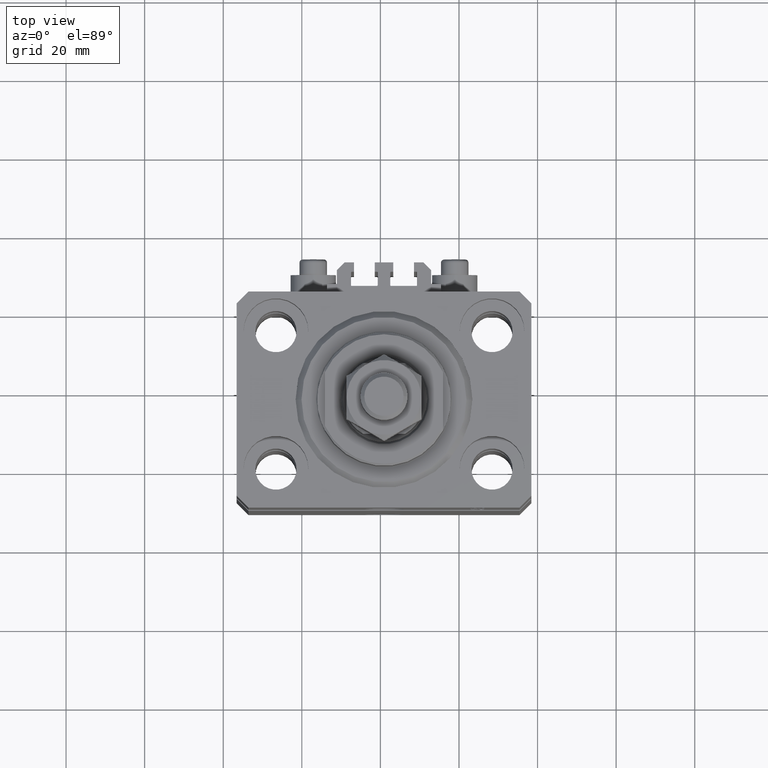
[diagram: clean part render]
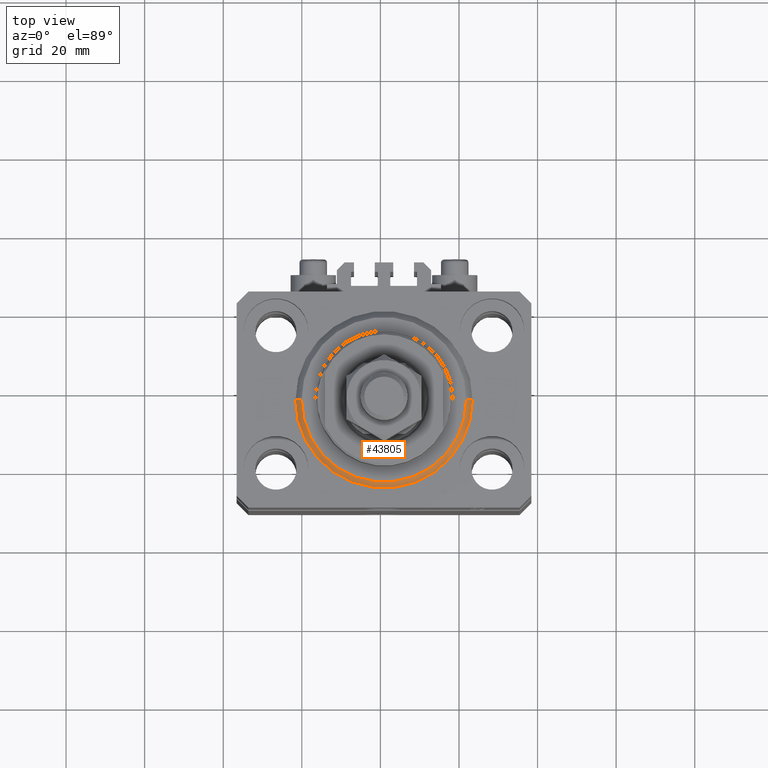
[diagram: same view with one face highlighted and labeled with its STEP entity id]
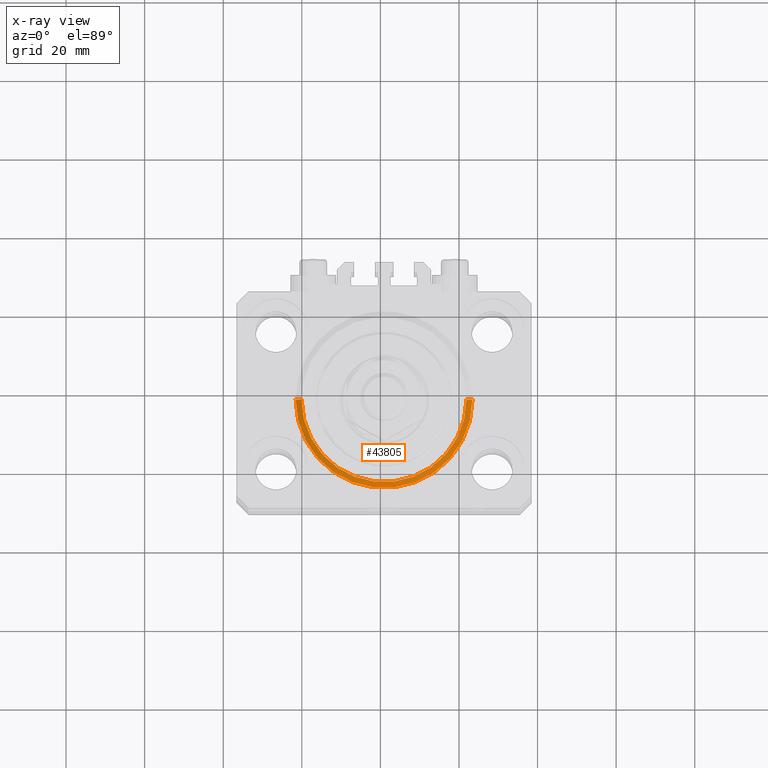
[diagram: x-ray of the same camera — body ghosted, the highlighted face saturated]
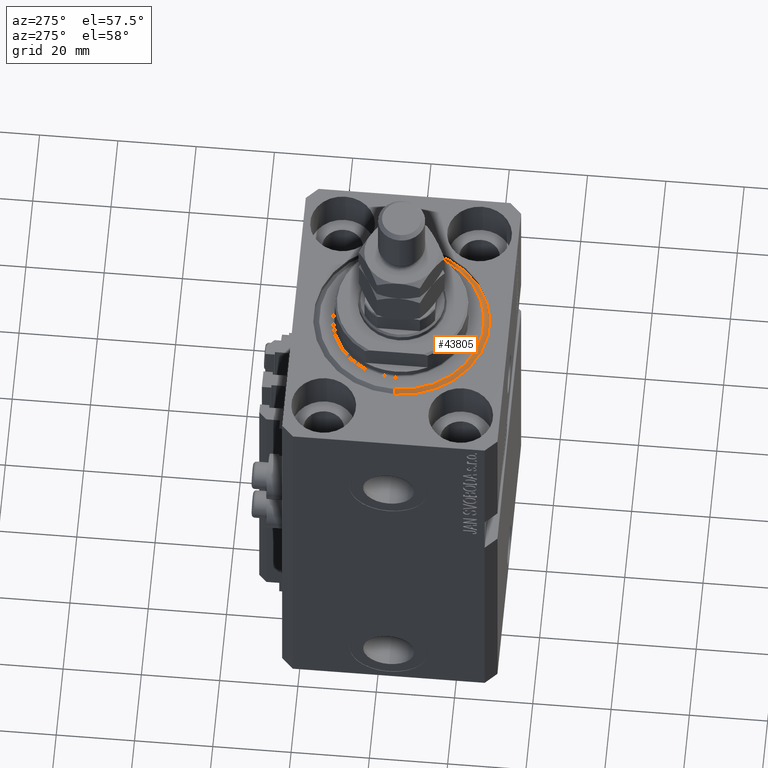
[diagram: same view with one face highlighted and labeled with its STEP entity id]
A machine part, top view. The second image highlights one B-rep face of the part: STEP entity #43805.
The next image is the same camera in x-ray: the body ghosted, the highlighted face saturated — about 0% of this face is hidden behind the body in this view.
A second angle (auxiliary view) of the same face is appended — the face is thin or edge-on in the first view.
In plain terms, the highlighted conical surface has half-angle 45 deg.
Its self-contained STEP definition (entity closure, byte-faithful):
#1502 = DIRECTION ( 'NONE',  ( 1.000000000000000000, 0.000000000000000000, 0.000000000000000000 ) ) ;
#5501 = CARTESIAN_POINT ( 'NONE',  ( -22.50000000000000355, 2.755455298081545172E-15, 1.500000000000039524 ) ) ;
#5564 = CARTESIAN_POINT ( 'NONE',  ( 20.99999999999995381, 0.000000000000000000, 0.000000000000000000 ) ) ;
#6120 = CARTESIAN_POINT ( 'NONE',  ( 0.000000000000000000, 0.000000000000000000, 0.000000000000000000 ) ) ;
#9831 = CARTESIAN_POINT ( 'NONE',  ( 0.000000000000000000, 0.000000000000000000, 1.500000000000039524 ) ) ;
#9854 = ORIENTED_EDGE ( 'NONE', *, *, #44351, .F. ) ;
#10144 = AXIS2_PLACEMENT_3D ( 'NONE', #25323, #47824, #17961 ) ;
#10863 = AXIS2_PLACEMENT_3D ( 'NONE', #9831, #24543, #43128 ) ;
#12164 = VERTEX_POINT ( 'NONE', #34166 ) ;
#13717 = CARTESIAN_POINT ( 'NONE',  ( 22.50000000000000355, 0.000000000000000000, 1.500000000000039524 ) ) ;
#14262 = CARTESIAN_POINT ( 'NONE',  ( -20.99999999999995381, 2.663606788145490261E-15, 0.000000000000000000 ) ) ;
#17961 = DIRECTION ( 'NONE',  ( 1.000000000000000000, 0.000000000000000000, 0.000000000000000000 ) ) ;
#18000 = ORIENTED_EDGE ( 'NONE', *, *, #33560, .F. ) ;
#21037 = VERTEX_POINT ( 'NONE', #24295 ) ;
#21066 = DIRECTION ( 'NONE',  ( -0.000000000000000000, -0.000000000000000000, -1.000000000000000000 ) ) ;
#23314 = EDGE_CURVE ( 'NONE', #30089, #38383, #45301, .T. ) ;
#24295 = CARTESIAN_POINT ( 'NONE',  ( 22.50000000000000355, 2.755455298081544383E-15, 1.500000000000039524 ) ) ;
#24543 = DIRECTION ( 'NONE',  ( -0.000000000000000000, -0.000000000000000000, 1.000000000000000000 ) ) ;
#24583 = DIRECTION ( 'NONE',  ( -0.7071067811865500152, 8.659560562354962440E-17, 0.7071067811865451302 ) ) ;
#25021 = FACE_OUTER_BOUND ( 'NONE', #36055, .T. ) ;
#25323 = CARTESIAN_POINT ( 'NONE',  ( 0.000000000000000000, 0.000000000000000000, 1.500000000000039524 ) ) ;
#29639 = CONICAL_SURFACE ( 'NONE', #10863, 22.50000000000000355, 0.7853981633974517207 ) ;
#30089 = VERTEX_POINT ( 'NONE', #5564 ) ;
#31276 = AXIS2_PLACEMENT_3D ( 'NONE', #6120, #21066, #1502 ) ;
#32290 = ORIENTED_EDGE ( 'NONE', *, *, #23314, .F. ) ;
#33560 = EDGE_CURVE ( 'NONE', #38383, #12164, #42444, .T. ) ;
#33850 = VECTOR ( 'NONE', #24583, 1000.000000000000114 ) ;
#34166 = CARTESIAN_POINT ( 'NONE',  ( -22.50000000000000355, 0.000000000000000000, 1.500000000000039524 ) ) ;
#36055 = EDGE_LOOP ( 'NONE', ( #18000, #32290, #41167, #9854 ) ) ;
#36491 = DIRECTION ( 'NONE',  ( 0.7071067811865500152, 0.000000000000000000, 0.7071067811865451302 ) ) ;
#38383 = VERTEX_POINT ( 'NONE', #14262 ) ;
#39725 = VECTOR ( 'NONE', #36491, 1000.000000000000114 ) ;
#41167 = ORIENTED_EDGE ( 'NONE', *, *, #41560, .T. ) ;
#41560 = EDGE_CURVE ( 'NONE', #30089, #21037, #47257, .T. ) ;
#42444 = LINE ( 'NONE', #5501, #33850 ) ;
#42914 = CIRCLE ( 'NONE', #10144, 22.50000000000000355 ) ;
#43128 = DIRECTION ( 'NONE',  ( 1.000000000000000000, 0.000000000000000000, 0.000000000000000000 ) ) ;
#43805 = ADVANCED_FACE ( 'NONE', ( #25021 ), #29639, .T. ) ;
#44351 = EDGE_CURVE ( 'NONE', #12164, #21037, #42914, .T. ) ;
#45301 = CIRCLE ( 'NONE', #31276, 20.99999999999995381 ) ;
#47257 = LINE ( 'NONE', #13717, #39725 ) ;
#47824 = DIRECTION ( 'NONE',  ( -0.000000000000000000, -0.000000000000000000, 1.000000000000000000 ) ) ;